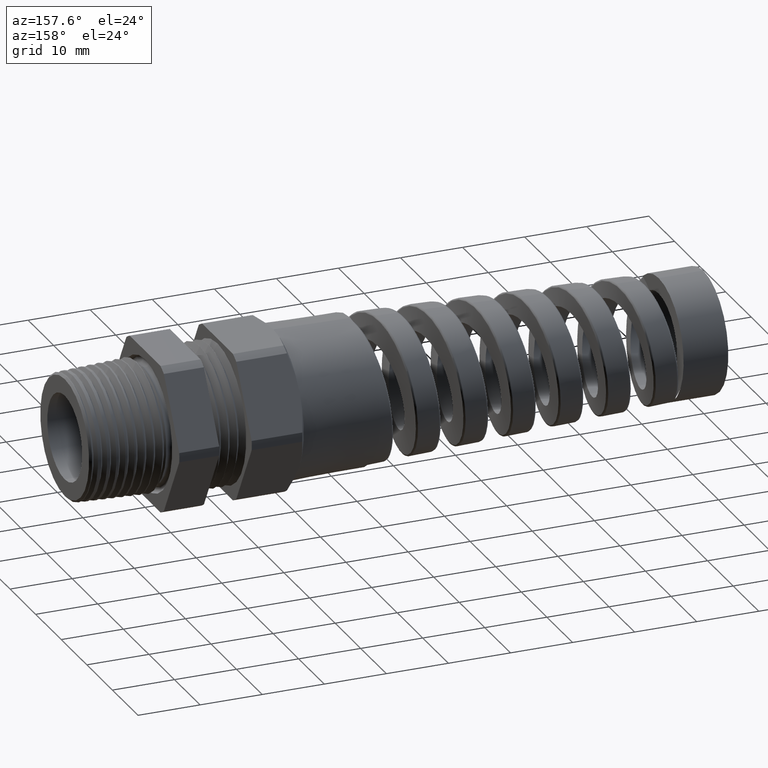
[diagram: clean part render]
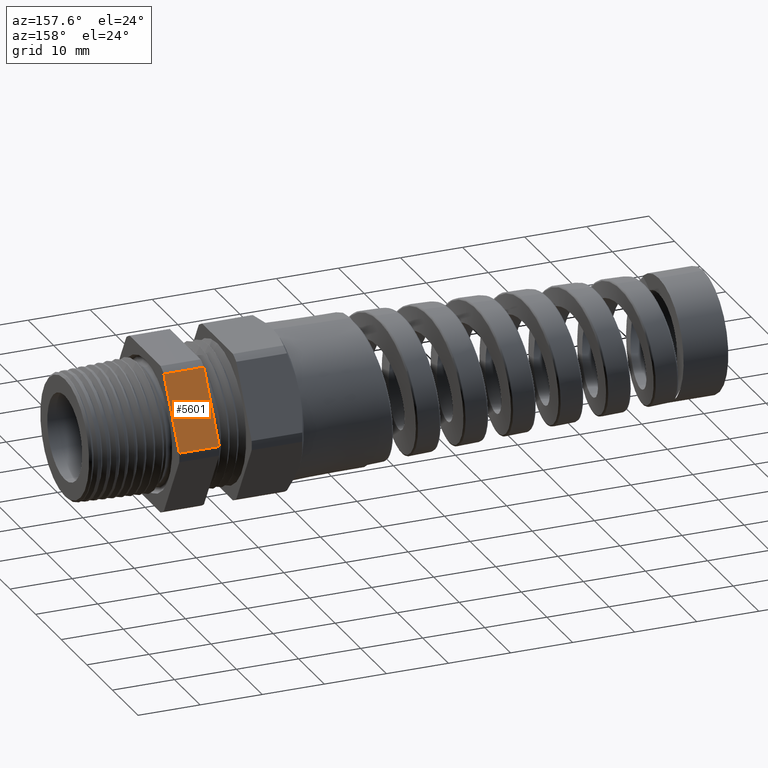
[diagram: same view with one face highlighted and labeled with its STEP entity id]
A machine part, auxiliary view. The second image highlights one B-rep face of the part: STEP entity #5601.
In plain terms, the highlighted planar face has unit normal (0, 0.866, 0.5).
Its self-contained STEP definition (entity closure, byte-faithful):
#2137 = CARTESIAN_POINT ( 'NONE',  ( -0.2537313432835821600, 0.2885024497772521500, 0.4402990988777105700 ) ) ;
#2183 = DIRECTION ( 'NONE',  ( 0.0000000000000000000, -0.5000000000000001100, 0.8660254037844386000 ) ) ;
#2184 = VECTOR ( 'NONE', #2183, 39.37007874015748100 ) ;
#2185 = CARTESIAN_POINT ( 'NONE',  ( -0.2537313432835821000, 0.5170069397786860600, 0.04451771243761267600 ) ) ;
#2186 = LINE ( 'NONE', #2185, #2184 ) ;
#2194 = CARTESIAN_POINT ( 'NONE',  ( -0.2537313432835821600, 0.5255614297801198800, 0.02970090112228932300 ) ) ;
#2221 = DIRECTION ( 'NONE',  ( 0.0000000000000000000, -0.5000000000000001100, 0.8660254037844386000 ) ) ;
#2222 = DIRECTION ( 'NONE',  ( 0.0000000000000000000, 0.8660254037844386000, 0.5000000000000001100 ) ) ;
#2223 = CARTESIAN_POINT ( 'NONE',  ( -2.316272878851058700, 0.5255614297801198800, 0.02970090112228930500 ) ) ;
#2224 = AXIS2_PLACEMENT_3D ( 'NONE', #2223, #2222, #2221 ) ;
#2225 = PLANE ( 'NONE',  #2224 ) ;
#2226 = FACE_OUTER_BOUND ( 'NONE', #5599, .T. ) ;
#4380 = EDGE_CURVE ( 'NONE', #5567, #7480, #6911, .T. ) ;
#5159 = EDGE_CURVE ( 'NONE', #5570, #7620, #11440, .T. ) ;
#5567 = VERTEX_POINT ( 'NONE', #2137 ) ;
#5570 = VERTEX_POINT ( 'NONE', #2194 ) ;
#5575 = EDGE_CURVE ( 'NONE', #5570, #5567, #2186, .T. ) ;
#5587 = ORIENTED_EDGE ( 'NONE', *, *, #5575, .T. ) ;
#5588 = ORIENTED_EDGE ( 'NONE', *, *, #4380, .T. ) ;
#5599 = EDGE_LOOP ( 'NONE', ( #5587, #5588, #5712, #5711 ) ) ;
#5601 = ADVANCED_FACE ( 'NONE', ( #2226 ), #2225, .T. ) ;
#5711 = ORIENTED_EDGE ( 'NONE', *, *, #5159, .F. ) ;
#5712 = ORIENTED_EDGE ( 'NONE', *, *, #7616, .F. ) ;
#6900 = DIRECTION ( 'NONE',  ( 1.000000000000000000, 0.0000000000000000000, 0.0000000000000000000 ) ) ;
#6909 = VECTOR ( 'NONE', #6900, 39.37007874015748100 ) ;
#6910 = CARTESIAN_POINT ( 'NONE',  ( -2.316272878851058700, 0.2885024497772521500, 0.4402990988777105700 ) ) ;
#6911 = LINE ( 'NONE', #6910, #6909 ) ;
#7480 = VERTEX_POINT ( 'NONE', #8850 ) ;
#7616 = EDGE_CURVE ( 'NONE', #7620, #7480, #8844, .T. ) ;
#7620 = VERTEX_POINT ( 'NONE', #8840 ) ;
#8840 = CARTESIAN_POINT ( 'NONE',  ( 0.0000000000000000000, 0.5255614297801198800, 0.02970090112228932300 ) ) ;
#8841 = DIRECTION ( 'NONE',  ( 0.0000000000000000000, -0.5000000000000001100, 0.8660254037844386000 ) ) ;
#8842 = VECTOR ( 'NONE', #8841, 39.37007874015748100 ) ;
#8843 = CARTESIAN_POINT ( 'NONE',  ( 0.0000000000000000000, 0.5255614297801198800, 0.02970090112228930500 ) ) ;
#8844 = LINE ( 'NONE', #8843, #8842 ) ;
#8850 = CARTESIAN_POINT ( 'NONE',  ( 0.0000000000000000000, 0.2885024497772522000, 0.4402990988777105700 ) ) ;
#11437 = DIRECTION ( 'NONE',  ( 1.000000000000000000, 0.0000000000000000000, 0.0000000000000000000 ) ) ;
#11438 = VECTOR ( 'NONE', #11437, 39.37007874015748100 ) ;
#11439 = CARTESIAN_POINT ( 'NONE',  ( -2.316272878851058700, 0.5255614297801198800, 0.02970090112228932300 ) ) ;
#11440 = LINE ( 'NONE', #11439, #11438 ) ;